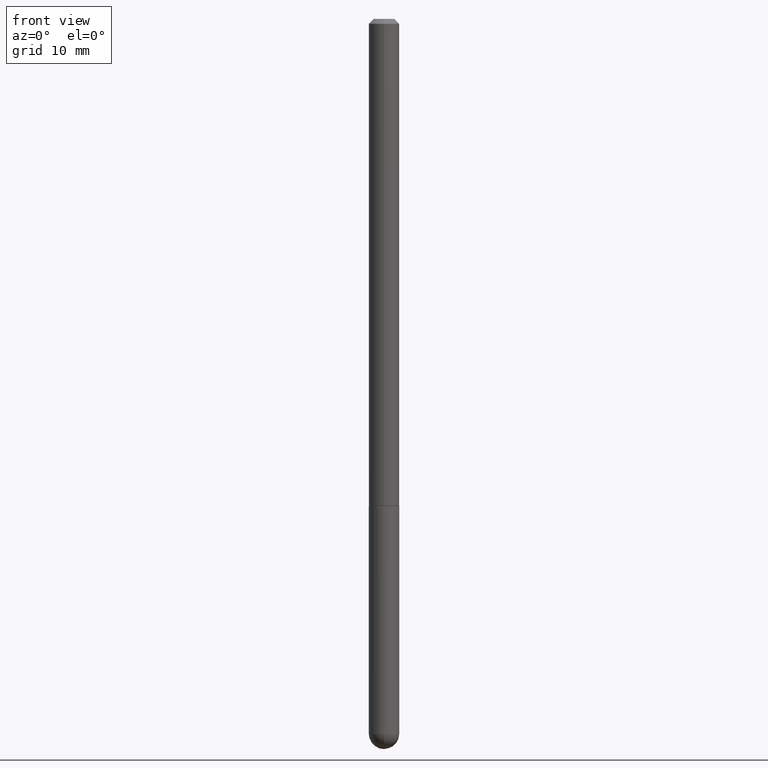
[diagram: clean part render]
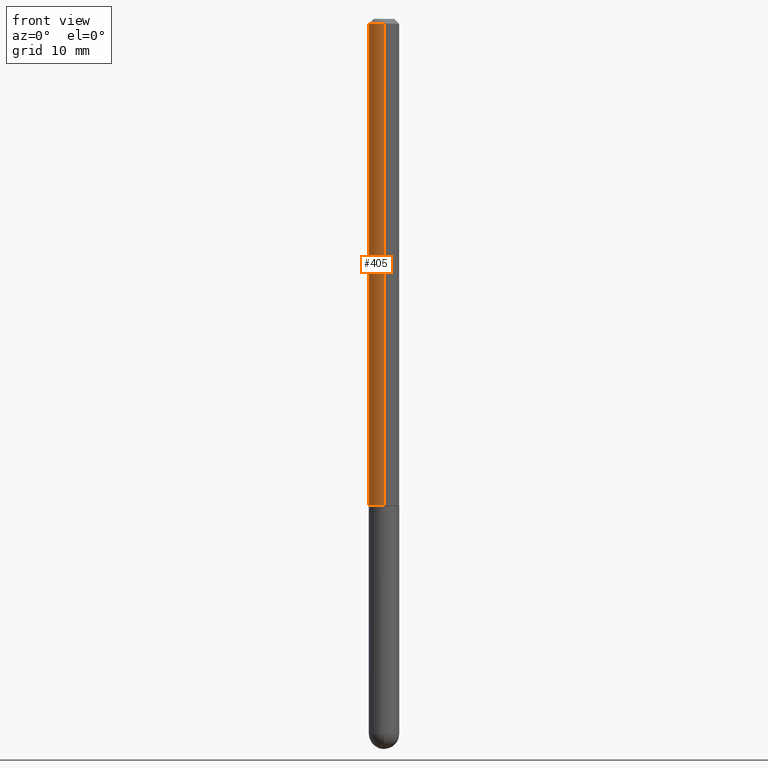
[diagram: same view with one face highlighted and labeled with its STEP entity id]
A machine part, front view. The second image highlights one B-rep face of the part: STEP entity #405.
In plain terms, the highlighted cylindrical surface (edge-blend (fillet) strip) has radius 1.5875 mm, axis along (-0, 0, 1).
Its self-contained STEP definition (entity closure, byte-faithful):
#8 = DIRECTION ( 'NONE',  ( -2.453861485911442649E-29, 3.479462543793410697E-15, 1.000000000000000000 ) ) ;
#12 = DIRECTION ( 'NONE',  ( -6.982962677686265922E-15, -1.000000000000000000, 4.370956789862807739E-15 ) ) ;
#21 = ORIENTED_EDGE ( 'NONE', *, *, #298, .T. ) ;
#42 = CARTESIAN_POINT ( 'NONE',  ( 4.907722971822902219E-31, -6.958925087586844172E-17, -0.02000000000000006981 ) ) ;
#48 = VERTEX_POINT ( 'NONE', #72 ) ;
#55 = AXIS2_PLACEMENT_3D ( 'NONE', #141, #339, #12 ) ;
#70 = LINE ( 'NONE', #195, #259 ) ;
#72 = CARTESIAN_POINT ( 'NONE',  ( 4.364351673553922118E-16, 0.06249999999999995143, -0.02000000000000028491 ) ) ;
#80 = CARTESIAN_POINT ( 'NONE',  ( 4.440892098500885500E-16, 0.06249999999999324846, -1.999000000000000554 ) ) ;
#115 = EDGE_CURVE ( 'NONE', #316, #48, #70, .T. ) ;
#124 = ORIENTED_EDGE ( 'NONE', *, *, #145, .F. ) ;
#125 = CARTESIAN_POINT ( 'NONE',  ( -4.287811248607203282E-16, -0.06250000000000008327, -0.01999999999999985123 ) ) ;
#141 = CARTESIAN_POINT ( 'NONE',  ( 4.905269110336974363E-29, -6.955445625043027478E-15, -1.999000000000000110 ) ) ;
#145 = EDGE_CURVE ( 'NONE', #48, #385, #305, .T. ) ;
#166 = DIRECTION ( 'NONE',  ( -2.453861485911442649E-29, 3.479462543793410303E-15, 1.000000000000000000 ) ) ;
#185 = CARTESIAN_POINT ( 'NONE',  ( 0.000000000000000000, 0.000000000000000000, 0.000000000000000000 ) ) ;
#190 = VECTOR ( 'NONE', #272, 39.37007874015748143 ) ;
#193 = EDGE_CURVE ( 'NONE', #287, #385, #403, .T. ) ;
#195 = CARTESIAN_POINT ( 'NONE',  ( 4.440892098500633064E-16, 0.06250000000000009714, -2.174664089870885137E-16 ) ) ;
#204 = CARTESIAN_POINT ( 'NONE',  ( -4.364351673553923597E-16, -0.06250000000000009714, 2.174664089870885137E-16 ) ) ;
#219 = EDGE_LOOP ( 'NONE', ( #254, #21, #407, #124 ) ) ;
#254 = ORIENTED_EDGE ( 'NONE', *, *, #115, .F. ) ;
#255 = CYLINDRICAL_SURFACE ( 'NONE', #372, 0.06250000000000009714 ) ;
#259 = VECTOR ( 'NONE', #8, 39.37007874015748143 ) ;
#272 = DIRECTION ( 'NONE',  ( -2.453861485911442649E-29, 3.479462543793410697E-15, 1.000000000000000000 ) ) ;
#287 = VERTEX_POINT ( 'NONE', #402 ) ;
#298 = EDGE_CURVE ( 'NONE', #316, #287, #408, .T. ) ;
#301 = DIRECTION ( 'NONE',  ( -6.982962677686265922E-15, -1.000000000000000000, 3.483106191921934765E-15 ) ) ;
#305 = CIRCLE ( 'NONE', #345, 0.06250000000000001388 ) ;
#312 = FACE_OUTER_BOUND ( 'NONE', #219, .T. ) ;
#316 = VERTEX_POINT ( 'NONE', #80 ) ;
#339 = DIRECTION ( 'NONE',  ( -2.453861485911442649E-29, 3.479462543793410303E-15, 1.000000000000000000 ) ) ;
#345 = AXIS2_PLACEMENT_3D ( 'NONE', #42, #166, #301 ) ;
#348 = DIRECTION ( 'NONE',  ( -6.982962677686266711E-15, -1.000000000000000000, 3.479462543793410697E-15 ) ) ;
#372 = AXIS2_PLACEMENT_3D ( 'NONE', #185, #384, #348 ) ;
#384 = DIRECTION ( 'NONE',  ( -2.453861485911442649E-29, 3.479462543793410303E-15, 1.000000000000000000 ) ) ;
#385 = VERTEX_POINT ( 'NONE', #125 ) ;
#402 = CARTESIAN_POINT ( 'NONE',  ( -4.364351673553439433E-16, -0.06250000000000714706, -1.998999999999999888 ) ) ;
#403 = LINE ( 'NONE', #204, #190 ) ;
#405 = ADVANCED_FACE ( 'NONE', ( #312 ), #255, .T. ) ;
#407 = ORIENTED_EDGE ( 'NONE', *, *, #193, .T. ) ;
#408 = CIRCLE ( 'NONE', #55, 0.06250000000000019429 ) ;